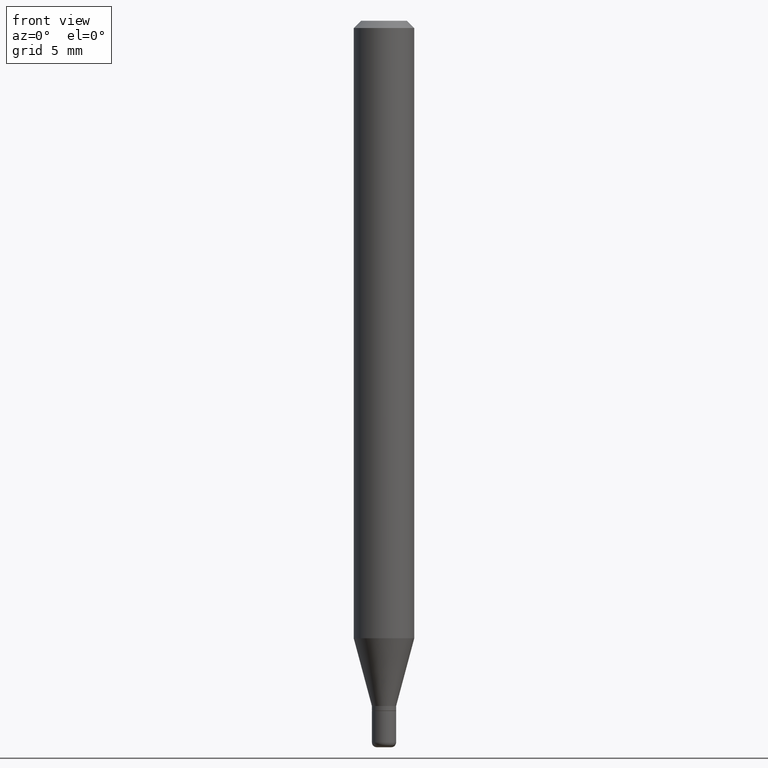
[diagram: clean part render]
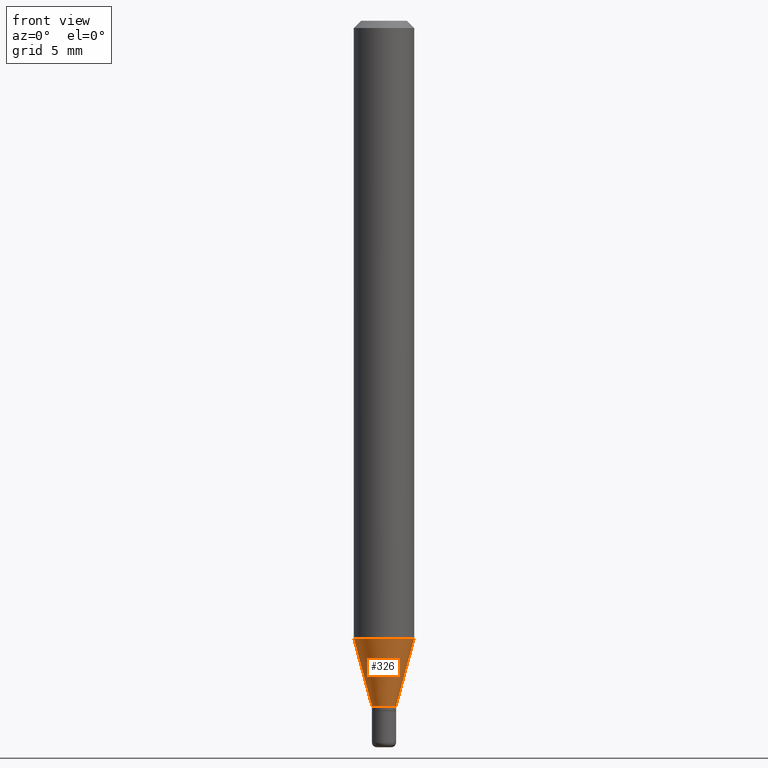
[diagram: same view with one face highlighted and labeled with its STEP entity id]
A machine part, front view. The second image highlights one B-rep face of the part: STEP entity #326.
In plain terms, the highlighted conical surface has half-angle 15 deg.
Its self-contained STEP definition (entity closure, byte-faithful):
#19 = LINE ( 'NONE', #129, #404 ) ;
#20 = VERTEX_POINT ( 'NONE', #42 ) ;
#21 = EDGE_CURVE ( 'NONE', #20, #296, #406, .T. ) ;
#23 = CARTESIAN_POINT ( 'NONE',  ( 3.460338360751968441E-29, -4.940446094463050737E-15, -1.415000000000000036 ) ) ;
#24 = AXIS2_PLACEMENT_3D ( 'NONE', #495, #470, #349 ) ;
#32 = DIRECTION ( 'NONE',  ( -2.445468806185136597E-29, 3.491481338843145583E-15, 1.000000000000000000 ) ) ;
#42 = CARTESIAN_POINT ( 'NONE',  ( -0.06250000000000000000, -4.007717418978941084E-15, -1.275048094716166869 ) ) ;
#129 = CARTESIAN_POINT ( 'NONE',  ( -0.02499999999999998057, -4.762810410523025533E-15, -1.415000000000000036 ) ) ;
#147 = CIRCLE ( 'NONE', #351, 0.02499999999999998057 ) ;
#152 = CARTESIAN_POINT ( 'NONE',  ( 0.02499999999999998057, -5.115020161405207405E-15, -1.415000000000000036 ) ) ;
#168 = VERTEX_POINT ( 'NONE', #487 ) ;
#172 = AXIS2_PLACEMENT_3D ( 'NONE', #200, #32, #230 ) ;
#193 = VECTOR ( 'NONE', #448, 39.37007874015748143 ) ;
#200 = CARTESIAN_POINT ( 'NONE',  ( 3.118090342014177952E-29, -4.451806628829005278E-15, -1.275048094716166869 ) ) ;
#230 = DIRECTION ( 'NONE',  ( 1.000000000000000000, -6.982962677686262766E-15, 0.000000000000000000 ) ) ;
#235 = CONICAL_SURFACE ( 'NONE', #24, 0.02499999999999998057, 0.2617993877991491858 ) ;
#242 = ORIENTED_EDGE ( 'NONE', *, *, #21, .F. ) ;
#245 = EDGE_CURVE ( 'NONE', #433, #20, #19, .T. ) ;
#270 = ORIENTED_EDGE ( 'NONE', *, *, #426, .T. ) ;
#296 = VERTEX_POINT ( 'NONE', #463 ) ;
#314 = CARTESIAN_POINT ( 'NONE',  ( -0.02499999999999998057, -4.385263914750983308E-15, -1.415000000000000036 ) ) ;
#326 = ADVANCED_FACE ( 'NONE', ( #339 ), #235, .T. ) ;
#339 = FACE_OUTER_BOUND ( 'NONE', #497, .T. ) ;
#344 = DIRECTION ( 'NONE',  ( 1.000000000000000000, -6.982962677686260400E-15, 0.000000000000000000 ) ) ;
#349 = DIRECTION ( 'NONE',  ( 1.000000000000000000, -6.982962677686260400E-15, 0.000000000000000000 ) ) ;
#351 = AXIS2_PLACEMENT_3D ( 'NONE', #23, #390, #344 ) ;
#353 = ORIENTED_EDGE ( 'NONE', *, *, #377, .T. ) ;
#377 = EDGE_CURVE ( 'NONE', #433, #168, #147, .T. ) ;
#390 = DIRECTION ( 'NONE',  ( -2.445468806185136597E-29, 3.491481338843145583E-15, 1.000000000000000000 ) ) ;
#404 = VECTOR ( 'NONE', #409, 39.37007874015748143 ) ;
#406 = CIRCLE ( 'NONE', #172, 0.06250000000000000000 ) ;
#409 = DIRECTION ( 'NONE',  ( -0.2588190451025205174, 5.211531920934544731E-15, 0.9659258262890684232 ) ) ;
#426 = EDGE_CURVE ( 'NONE', #168, #296, #514, .T. ) ;
#433 = VERTEX_POINT ( 'NONE', #314 ) ;
#448 = DIRECTION ( 'NONE',  ( 0.2588190451025205174, 1.565188264969628476E-15, 0.9659258262890684232 ) ) ;
#463 = CARTESIAN_POINT ( 'NONE',  ( 0.06250000000000000000, -4.888241796184395369E-15, -1.275048094716166869 ) ) ;
#470 = DIRECTION ( 'NONE',  ( -2.445468806185136597E-29, 3.491481338843145583E-15, 1.000000000000000000 ) ) ;
#487 = CARTESIAN_POINT ( 'NONE',  ( 0.02499999999999998057, -5.115020161405207405E-15, -1.415000000000000036 ) ) ;
#495 = CARTESIAN_POINT ( 'NONE',  ( 3.460338360751968441E-29, -4.940446094463050737E-15, -1.415000000000000036 ) ) ;
#497 = EDGE_LOOP ( 'NONE', ( #503, #353, #270, #242 ) ) ;
#503 = ORIENTED_EDGE ( 'NONE', *, *, #245, .F. ) ;
#514 = LINE ( 'NONE', #152, #193 ) ;